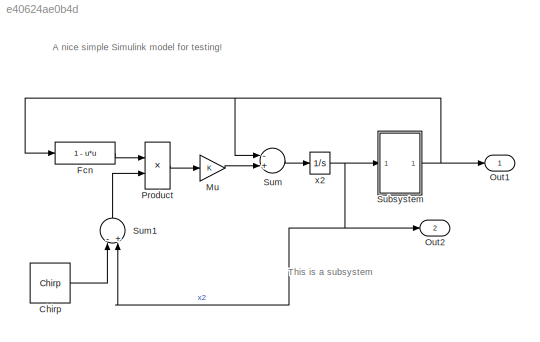
MODEL slx_e40624ae0b4d
KIND model
CONFIG AbsTol = 1e-6
CONFIG EnableMultiTasking = off
CONFIG FixedStep = auto
CONFIG MaxStep = auto
CONFIG MinStep = auto
CONFIG RelTol = 1e-3
CONFIG SampleTimeConstraint = Unconstrained
CONFIG Solver = VariableStepAuto
CONFIG SolverName = VariableStepAuto
CONFIG StartTime = 0.0
CONFIG StopTime = 20
BLOCK [Reference] Chirp  REF=dspsrcs4/Chirp
  Ports = [0, 1]
  SourceBlock = dspsrcs4/Chirp
  SourceProductBaseCode = DS
  SourceProductName = DSP System Toolbox
  SourceType = Chirp
BLOCK [Fcn] Fcn
  Expr = 1 - u*u
BLOCK [Gain] Mu
BLOCK [Outport] Out1
  IconDisplay = Port number
  InitialOutput = 0
BLOCK [Outport] Out2
  IconDisplay = Port number
  InitialOutput = 0
  Port = 2
BLOCK [Product] Product
  Ports = [2, 1]
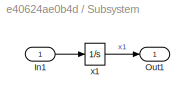
BLOCK [SubSystem] Subsystem
  Ports = [1, 1]
  RequestExecContextInheritance = off
BLOCK [Inport] Subsystem/In1
  IconDisplay = Port number
BLOCK [Outport] Subsystem/Out1
  IconDisplay = Port number
BLOCK [Integrator] Subsystem/x1
  InitialCondition = 2
  Ports = [1, 1]
BLOCK [Sum] Sum
  Inputs = -+
  Ports = [2, 1]
BLOCK [Sum] Sum1
  Inputs = -+
  Ports = [2, 1]
BLOCK [Integrator] x2
  Ports = [1, 1]
ANNOTATION (root): A nice simple Simulink model for testing!
ANNOTATION (root): This is a subsystem
LINE Chirp:1 -> Sum1:1
LINE Fcn:1 -> Product:1
LINE Mu:1 -> Sum:2
LINE Product:1 -> Mu:1
LINE Subsystem/In1:1 -> Subsystem/x1:1
LINE Subsystem/x1:1 -> Subsystem/Out1:1
NET Subsystem:1 -> Fcn:1, Out1:1, Sum:1
LINE Sum1:1 -> Product:2
LINE Sum:1 -> x2:1
NET x2:1 -> Out2:1, Subsystem:1, Sum1:2
note: NET lines group one-source signal fan-out (src -> all destinations, sorted); 1:1 wires keep LINE
